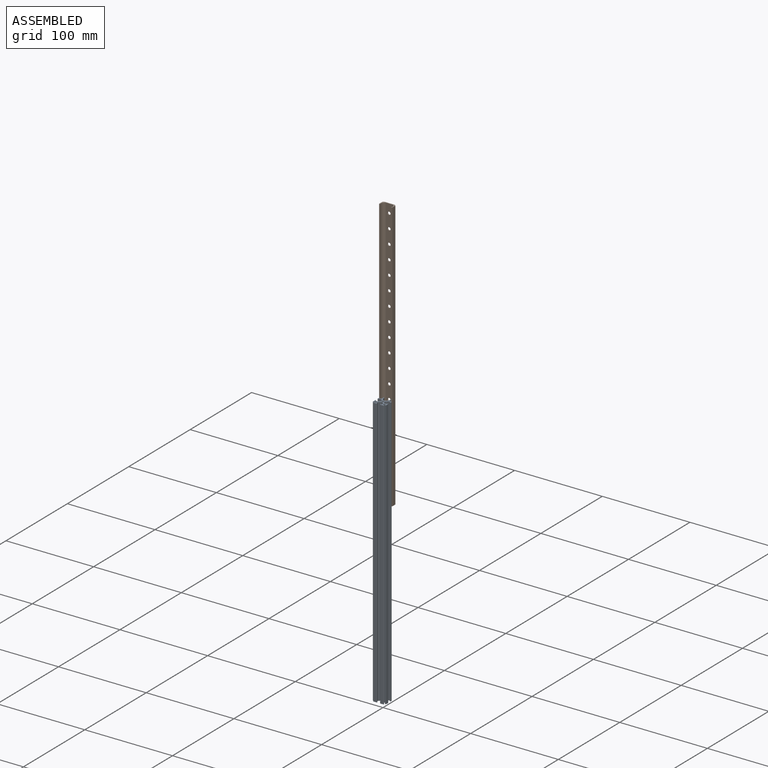
[diagram: assembled view]
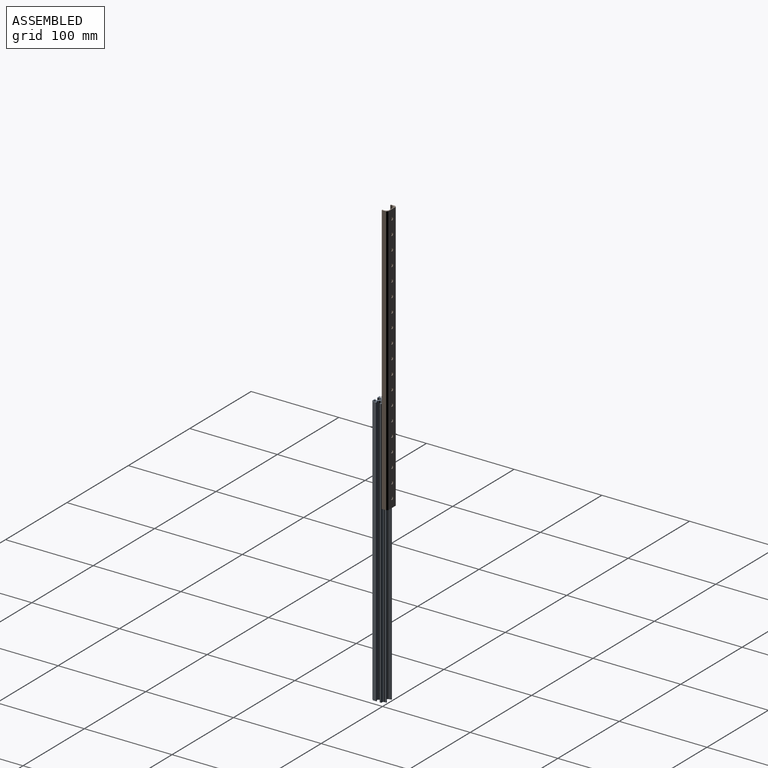
[diagram: assembled view, second angle]
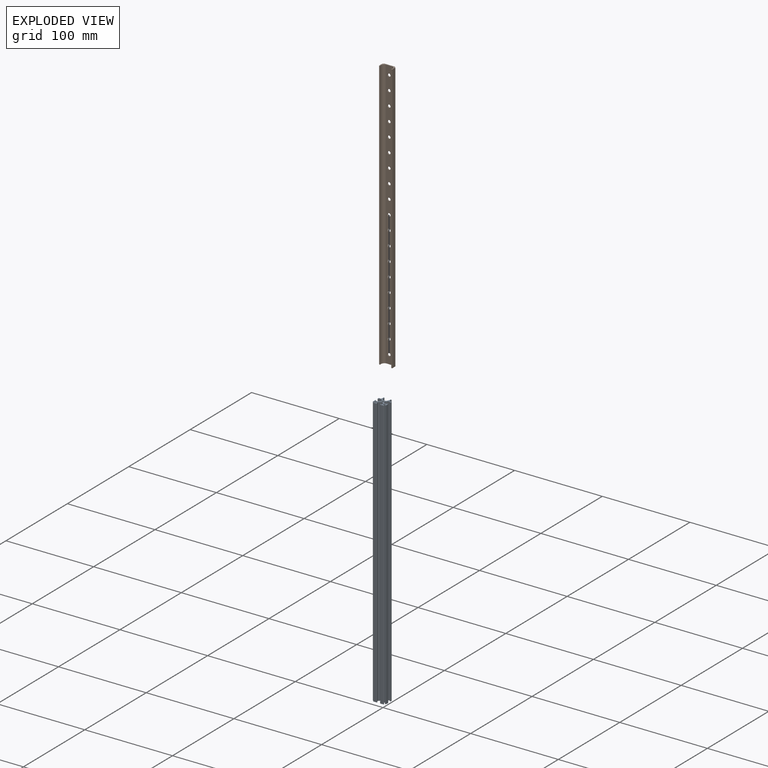
[diagram: exploded view]
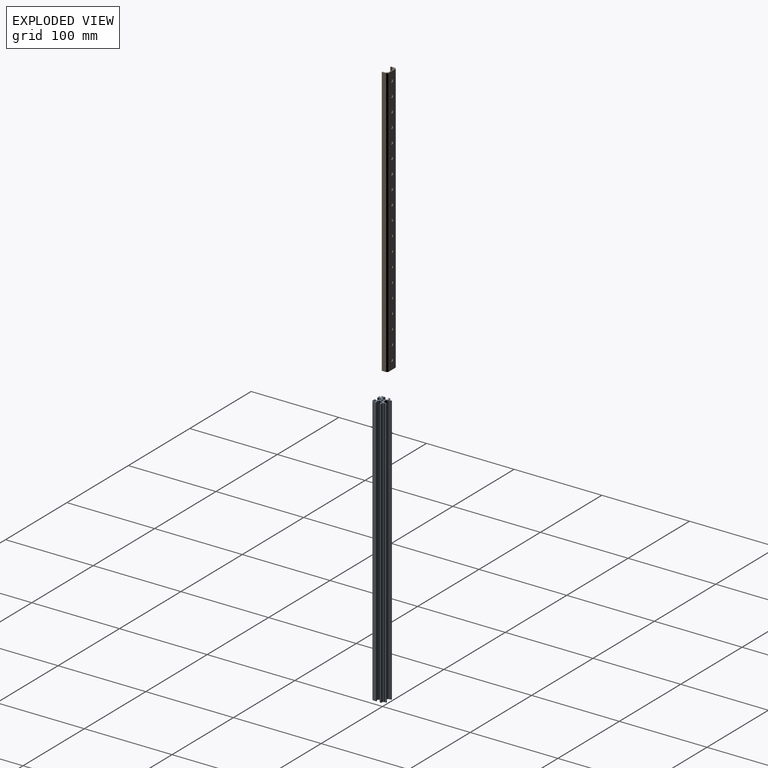
[diagram: exploded view, second angle]
ASSEMBLY  parts=2 mates=3
PART A: 121 faces, bbox 15x15.1x308 mm
  f0: cylinder r=1.6mm len=6mm, axis (1,0,0), area 37mm2, adj f7,f8,f9,f10,f11,f12,f13,f14
  f1: cylinder r=1.6mm len=6mm, axis (1,0,0), area 37.1mm2, adj f6,f8,f9,f10,f12,f15,f17,f18
  f2: cylinder r=1.22mm len=308mm, axis (0,0,-1), area 648.3mm2, adj f24,f25,f105,f106
  f3: cylinder r=1.25mm len=308mm, axis (0,0,1), area 2102.2mm2, adj f24,f25,f77,f78
  f4: cylinder r=0.5mm len=308mm, axis (0,0,1), area 362.9mm2, adj f24,f25,f52,f53
  f5: cylinder r=1.25mm len=308mm, axis (0,0,1), area 2102.2mm2, adj f24,f25,f51,f52
  f6: cylinder r=1.25mm len=7mm, axis (0,0,1), area 52.5mm2, adj f1,f24
  f7: cylinder r=1.25mm len=6.4mm, axis (0,0,1), area 50.3mm2, adj f0,f25
  f8: cylinder r=1.25mm len=290mm, axis (0,0,1), area 2272.7mm2, adj f0,f1
  f9: plane 289.03x1.2mm, normal (1,0,0), area 346.7mm2, adj f0,f1,f10,f15
  f10: cylinder r=1mm len=292mm, axis (0,0,1), area 456.3mm2, adj f0,f1,f9,f40
  f11: cylinder r=1mm len=8mm, axis (0,0,1), area 11.4mm2, adj f0,f20,f25,f40
  f12: cylinder r=1mm len=292mm, axis (0,0,1), area 456.3mm2, adj f0,f1,f18,f92
  f13: cylinder r=1mm len=8mm, axis (0,0,1), area 11.4mm2, adj f0,f25,f90,f92
  f14: cylinder r=1mm len=8mm, axis (0,0,1), area 11.4mm2, adj f0,f20,f25,f37
  f15: cylinder r=1mm len=292mm, axis (0,0,1), area 456.3mm2, adj f0,f1,f9,f37
  f16: cylinder r=1mm len=8mm, axis (0,0,1), area 11.4mm2, adj f0,f25,f89,f90
  f17: cylinder r=1mm len=292mm, axis (0,0,1), area 456.3mm2, adj f0,f1,f18,f89
  f18: plane 289.03x1.2mm, normal (-1,0,0), area 346.7mm2, adj f0,f1,f12,f17
  f19: cylinder r=1mm len=8mm, axis (0,0,1), area 11.4mm2, adj f1,f24,f37,f38
  f20: plane 6.52x1.2mm, normal (1,0,0), area 7.7mm2, adj f0,f11,f14,f25
  f21: cylinder r=1mm len=8mm, axis (0,0,1), area 11.4mm2, adj f1,f22,f24,f89
  f22: plane 6.52x1.2mm, normal (-1,0,0), area 7.7mm2, adj f1,f21,f24,f91
  f23: plane 308x1.36mm, normal (0.98,0.17,0), area 425.2mm2, adj f24,f25,f113,f120
  f24: plane 15.1x15mm, normal (0,0,-1), area 79.4mm2, adj f2,f3,f4,f5,f6,f19,f21,f22
  f25: plane 15.1x15mm, normal (0,0,1), area 79.4mm2, adj f2,f3,f4,f5,f7,f11,f13,f14
  f26: plane 308x0.54mm, normal (0,1,0), area 166.4mm2, adj f24,f25,f114,f115
  f27: plane 308x2.13mm, normal (0,1,0), area 654.5mm2, adj f24,f25,f111,f117
  f28: plane 308x1.1mm, normal (1,0,0), area 338.8mm2, adj f24,f25,f29,f111
  f29: cylinder r=0.5mm len=308mm, axis (0,0,1), area 241.9mm2, adj f24,f25,f28,f30
  f30: plane 308x0.2mm, normal (0,-1,0), area 61.6mm2, adj f24,f25,f29,f31
  f31: cylinder r=0.5mm len=308mm, axis (0,0,1), area 241.9mm2, adj f24,f25,f30,f32
  f32: plane 308x0.4mm, normal (-1,0,0), area 123.2mm2, adj f24,f25,f31,f33
  f33: cylinder r=0.2mm len=308mm, axis (0,0,1), area 96.8mm2, adj f24,f25,f32,f34
  f34: plane 308x2.1mm, normal (0,-1,0), area 646.8mm2, adj f24,f25,f33,f35
  f35: cylinder r=0.5mm len=308mm, axis (0,0,1), area 241.9mm2, adj f24,f25,f34,f36
  f36: plane 308x0.25mm, normal (1,0,0), area 77mm2, adj f24,f25,f35,f37
  f37: cylinder r=0.5mm len=308mm, axis (0,0,1), area 241.9mm2, adj f14,f15,f19,f24,f25,f36
  f38: plane 6.52x1.2mm, normal (1,0,0), area 7.7mm2, adj f1,f19,f24,f39
  f39: cylinder r=1mm len=8mm, axis (0,0,1), area 11.4mm2, adj f1,f24,f38,f40
  f40: cylinder r=0.5mm len=308mm, axis (0,0,1), area 241.9mm2, adj f10,f11,f24,f25,f39,f41
  f41: plane 308x0.25mm, normal (1,0,0), area 77mm2, adj f24,f25,f40,f42
  f42: cylinder r=0.5mm len=308mm, axis (0,0,1), area 241.9mm2, adj f24,f25,f41,f43
  f43: plane 308x2.1mm, normal (0,1,0), area 646.8mm2, adj f24,f25,f42,f44
  f44: cylinder r=0.2mm len=308mm, axis (0,0,1), area 96.8mm2, adj f24,f25,f43,f45
  f45: plane 308x0.4mm, normal (-1,0,0), area 123.2mm2, adj f24,f25,f44,f46
  f46: cylinder r=0.5mm len=308mm, axis (0,0,1), area 241.9mm2, adj f24,f25,f45,f47
  f47: plane 308x0.2mm, normal (0,1,0), area 61.6mm2, adj f24,f25,f46,f48
  f48: cylinder r=0.5mm len=308mm, axis (0,0,1), area 241.9mm2, adj f24,f25,f47,f49
  f49: plane 308x3.34mm, normal (1,0,0), area 1027.4mm2, adj f24,f25,f48,f50
  f50: cylinder r=0.5mm len=308mm, axis (0,0,1), area 362.9mm2, adj f24,f25,f49,f51
  f51: plane 308x0.48mm, normal (-0.71,-0.71,0), area 210.3mm2, adj f5,f24,f25,f50
  f52: plane 308x0.48mm, normal (0.71,0.71,0), area 210.3mm2, adj f4,f5,f24,f25
  f53: plane 308x3.34mm, normal (0,-1,0), area 1027.4mm2, adj f4,f24,f25,f54
  f54: cylinder r=0.5mm len=308mm, axis (0,0,1), area 241.9mm2, adj f24,f25,f53,f55
  f55: plane 308x0.2mm, normal (-1,0,0), area 61.6mm2, adj f24,f25,f54,f56
  f56: cylinder r=0.5mm len=308mm, axis (0,0,1), area 241.9mm2, adj f24,f25,f55,f57
  f57: plane 308x0.4mm, normal (0,1,0), area 123.2mm2, adj f24,f25,f56,f58
  f58: cylinder r=0.2mm len=308mm, axis (0,0,1), area 96.8mm2, adj f24,f25,f57,f59
  f59: plane 308x2.1mm, normal (-1,0,0), area 646.8mm2, adj f24,f25,f58,f60
  f60: cylinder r=0.5mm len=308mm, axis (0,0,1), area 241.9mm2, adj f24,f25,f59,f61
  f61: plane 308x0.25mm, normal (0,-1,0), area 77mm2, adj f24,f25,f60,f62
  f62: cylinder r=0.5mm len=308mm, axis (0,0,1), area 241.9mm2, adj f24,f25,f61,f63
  f63: cylinder r=1mm len=308mm, axis (0,0,1), area 483.8mm2, adj f24,f25,f62,f64
  f64: plane 308x1.2mm, normal (0,-1,0), area 369.6mm2, adj f24,f25,f63,f65
  f65: cylinder r=1mm len=308mm, axis (0,0,1), area 483.8mm2, adj f24,f25,f64,f66
  f66: cylinder r=0.5mm len=308mm, axis (0,0,1), area 241.9mm2, adj f24,f25,f65,f67
  f67: plane 308x0.25mm, normal (0,-1,0), area 77mm2, adj f24,f25,f66,f68
  f68: cylinder r=0.5mm len=308mm, axis (0,0,1), area 241.9mm2, adj f24,f25,f67,f69
  f69: plane 308x2.1mm, normal (1,0,0), area 646.8mm2, adj f24,f25,f68,f70
  f70: cylinder r=0.2mm len=308mm, axis (0,0,1), area 96.8mm2, adj f24,f25,f69,f71
  f71: plane 308x0.4mm, normal (0,1,0), area 123.2mm2, adj f24,f25,f70,f72
  f72: cylinder r=0.5mm len=308mm, axis (0,0,1), area 241.9mm2, adj f24,f25,f71,f73
  f73: plane 308x0.2mm, normal (1,0,0), area 61.6mm2, adj f24,f25,f72,f74
  f74: cylinder r=0.5mm len=308mm, axis (0,0,1), area 241.9mm2, adj f24,f25,f73,f75
  f75: plane 308x3.34mm, normal (0,-1,0), area 1027.4mm2, adj f24,f25,f74,f76
  f76: cylinder r=0.5mm len=308mm, axis (0,0,1), area 362.9mm2, adj f24,f25,f75,f77
  f77: plane 308x0.48mm, normal (-0.71,0.71,0), area 210.3mm2, adj f3,f24,f25,f76
  f78: plane 308x0.48mm, normal (0.71,-0.71,0), area 210.3mm2, adj f3,f24,f25,f79
  f79: cylinder r=0.5mm len=308mm, axis (0,0,1), area 362.9mm2, adj f24,f25,f78,f80
  f80: plane 308x3.34mm, normal (-1,0,0), area 1027.4mm2, adj f24,f25,f79,f81
  f81: cylinder r=0.5mm len=308mm, axis (0,0,1), area 241.9mm2, adj f24,f25,f80,f82
  f82: plane 308x0.2mm, normal (0,1,0), area 61.6mm2, adj f24,f25,f81,f83
  f83: cylinder r=0.5mm len=308mm, axis (0,0,1), area 241.9mm2, adj f24,f25,f82,f84
  f84: plane 308x0.4mm, normal (1,0,0), area 123.2mm2, adj f24,f25,f83,f85
  f85: cylinder r=0.2mm len=308mm, axis (0,0,1), area 96.8mm2, adj f24,f25,f84,f86
  f86: plane 308x2.1mm, normal (0,1,0), area 646.8mm2, adj f24,f25,f85,f87
  f87: cylinder r=0.5mm len=308mm, axis (0,0,1), area 241.9mm2, adj f24,f25,f86,f88
  f88: plane 308x0.25mm, normal (-1,0,0), area 77mm2, adj f24,f25,f87,f89
  f89: cylinder r=0.5mm len=308mm, axis (0,0,1), area 241.9mm2, adj f16,f17,f21,f24,f25,f88
  f90: plane 6.52x1.2mm, normal (-1,0,0), area 7.7mm2, adj f0,f13,f16,f25
  f91: cylinder r=1mm len=8mm, axis (0,0,1), area 11.4mm2, adj f1,f22,f24,f92
  f92: cylinder r=0.5mm len=308mm, axis (0,0,1), area 241.9mm2, adj f12,f13,f24,f25,f91,f93
  f93: plane 308x0.25mm, normal (-1,0,0), area 77mm2, adj f24,f25,f92,f94
  f94: cylinder r=0.5mm len=308mm, axis (0,0,1), area 241.9mm2, adj f24,f25,f93,f95
  f95: plane 308x2.1mm, normal (0,-1,0), area 646.8mm2, adj f24,f25,f94,f96
  f96: cylinder r=0.2mm len=308mm, axis (0,0,1), area 96.8mm2, adj f24,f25,f95,f97
  f97: plane 308x0.4mm, normal (1,0,0), area 123.2mm2, adj f24,f25,f96,f98
  f98: cylinder r=0.5mm len=308mm, axis (0,0,1), area 241.9mm2, adj f24,f25,f97,f99
  f99: plane 308x0.2mm, normal (0,-1,0), area 61.6mm2, adj f24,f25,f98,f100
  f100: cylinder r=0.5mm len=308mm, axis (0,0,1), area 241.9mm2, adj f24,f25,f99,f101
  f101: plane 308x1.1mm, normal (-1,0,0), area 338.8mm2, adj f24,f25,f100,f110
  f102: plane 308x2.13mm, normal (0,1,0), area 654.5mm2, adj f24,f25,f110,f116
  f103: cylinder r=1.22mm len=308mm, axis (0,0,-1), area 648.3mm2, adj f24,f25,f104,f108
  f104: plane 308x1.12mm, normal (-1,0,0), area 345.7mm2, adj f24,f25,f103,f116
  f105: plane 308x1.12mm, normal (1,0,0), area 345.7mm2, adj f2,f24,f25,f117
  f106: plane 308x0.32mm, normal (1,0,0), area 99.3mm2, adj f2,f24,f25,f115
  f107: plane 308x0.54mm, normal (0,1,0), area 166.4mm2, adj f24,f25,f112,f113
  f108: plane 308x0.32mm, normal (-1,0,0), area 99.3mm2, adj f24,f25,f103,f112
  f109: plane 308x1.36mm, normal (-0.98,0.17,0), area 425.2mm2, adj f24,f25,f114,f119
  f110: cylinder r=0.5mm len=308mm, axis (0,0,1), area 241.9mm2, adj f24,f25,f101,f102
  f111: cylinder r=0.5mm len=308mm, axis (0,0,1), area 241.9mm2, adj f24,f25,f27,f28
  f112: cylinder r=0.25mm len=308mm, axis (0,0,-1), area 121mm2, adj f24,f25,f107,f108
  f113: cylinder r=0.25mm len=308mm, axis (0,0,1), area 107.5mm2, adj f23,f24,f25,f107
  f114: cylinder r=0.25mm len=308mm, axis (0,0,1), area 107.5mm2, adj f24,f25,f26,f109
  f115: cylinder r=0.25mm len=308mm, axis (0,0,-1), area 121mm2, adj f24,f25,f26,f106
  f116: cylinder r=0.2mm len=308mm, axis (0,0,-1), area 96.8mm2, adj f24,f25,f102,f104
  f117: cylinder r=0.2mm len=308mm, axis (0,0,-1), area 96.8mm2, adj f24,f25,f27,f105
  f118: cylinder r=2.86mm len=308mm, axis (0,0,-1), area 1703.2mm2, adj f24,f25,f119,f120
  f119: cylinder r=6.46mm len=308mm, axis (0,0,-1), area 854.8mm2, adj f24,f25,f109,f118
  f120: cylinder r=6.46mm len=308mm, axis (0,0,-1), area 854.8mm2, adj f23,f24,f25,f118
PART B: 45 faces, bbox 15x6.6x308 mm
  f0: cylinder r=1.7mm len=3.4mm, axis (0,-1,0), area 10.7mm2, adj f31,f32
  f1: cylinder r=1.7mm len=3.4mm, axis (0,-1,0), area 10.7mm2, adj f31,f32
  f2: cylinder r=1.22mm len=308mm, axis (0,0,-1), area 648.3mm2, adj f20,f28,f29,f30
  f3: cylinder r=1.7mm len=3.4mm, axis (0,-1,0), area 10.7mm2, adj f31,f32
  f4: cylinder r=1.7mm len=3.4mm, axis (0,-1,0), area 10.7mm2, adj f31,f32
  f5: cylinder r=1.7mm len=3.4mm, axis (0,-1,0), area 10.7mm2, adj f31,f32
  f6: cylinder r=1.7mm len=3.4mm, axis (0,-1,0), area 10.7mm2, adj f31,f32
  f7: cylinder r=1.7mm len=3.4mm, axis (0,-1,0), area 10.7mm2, adj f31,f32
  f8: cylinder r=1.7mm len=3.4mm, axis (0,-1,0), area 10.7mm2, adj f31,f32
  f9: cylinder r=1.7mm len=3.4mm, axis (0,-1,0), area 10.7mm2, adj f31,f32
  f10: cylinder r=1.7mm len=3.4mm, axis (0,-1,0), area 10.7mm2, adj f31,f32
  f11: cylinder r=1.7mm len=3.4mm, axis (0,-1,0), area 10.7mm2, adj f31,f32
  f12: cylinder r=1.7mm len=3.4mm, axis (0,-1,0), area 10.7mm2, adj f31,f32
  f13: cylinder r=1.7mm len=3.4mm, axis (0,-1,0), area 10.7mm2, adj f31,f32
  f14: cylinder r=1.7mm len=3.4mm, axis (0,-1,0), area 10.7mm2, adj f31,f32
  f15: cylinder r=1.7mm len=3.4mm, axis (0,-1,0), area 10.7mm2, adj f31,f32
  f16: cylinder r=1.7mm len=3.4mm, axis (0,-1,0), area 10.7mm2, adj f31,f32
  f17: cylinder r=1.7mm len=3.4mm, axis (0,-1,0), area 10.7mm2, adj f31,f32
  f18: cylinder r=1.7mm len=3.4mm, axis (0,-1,0), area 10.7mm2, adj f31,f32
  f19: cylinder r=1.7mm len=3.4mm, axis (0,-1,0), area 10.7mm2, adj f31,f32
  f20: plane 308x0.29mm, normal (1,0,0), area 88.9mm2, adj f2,f29,f30,f41
  f21: plane 308x0.29mm, normal (-1,0,0), area 88.9mm2, adj f22,f29,f30,f44
  f22: cylinder r=1.22mm len=308mm, axis (0,0,-1), area 648.3mm2, adj f21,f23,f29,f30
  f23: plane 308x0.57mm, normal (-1,0,0), area 176.3mm2, adj f22,f29,f30,f38
  f24: plane 308x0.73mm, normal (0,-1,0), area 223.3mm2, adj f29,f30,f37,f38
  f25: plane 308x4.85mm, normal (1,0,0), area 1493.8mm2, adj f29,f30,f33,f37
  f26: plane 308x4.85mm, normal (-1,0,0), area 1493.8mm2, adj f29,f30,f34,f39
  f27: plane 308x0.73mm, normal (0,-1,0), area 223.3mm2, adj f29,f30,f39,f40
  f28: plane 308x0.57mm, normal (1,0,0), area 176.3mm2, adj f2,f29,f30,f40
  f29: plane 15x6.6mm, normal (0,0,1), area 30mm2, adj f2,f20,f21,f22,f23,f24,f25,f26
  f30: plane 15x6.6mm, normal (0,0,-1), area 30mm2, adj f2,f20,f21,f22,f23,f24,f25,f26
  f31: plane 308x12mm, normal (0,1,0), area 3523.5mm2, adj f0,f1,f3,f4,f5,f6,f7,f8
  f32: plane 308x7.61mm, normal (0,-1,0), area 2171.2mm2, adj f0,f1,f3,f4,f5,f6,f7,f8
  f33: plane 308x1.5mm, normal (0.71,0.71,0), area 653.4mm2, adj f25,f29,f30,f31
  f34: plane 308x1.5mm, normal (-0.71,0.71,0), area 653.4mm2, adj f26,f29,f30,f31
  f35: plane 308x1.63mm, normal (-0.74,-0.67,0), area 677mm2, adj f29,f30,f43,f44
  f36: plane 308x1.63mm, normal (0.74,-0.67,0), area 677mm2, adj f29,f30,f41,f42
  f37: cylinder r=0.25mm len=308mm, axis (0,0,-1), area 121mm2, adj f24,f25,f29,f30
  f38: cylinder r=0.25mm len=308mm, axis (0,0,-1), area 121mm2, adj f23,f24,f29,f30
  f39: cylinder r=0.25mm len=308mm, axis (0,0,-1), area 121mm2, adj f26,f27,f29,f30
  f40: cylinder r=0.25mm len=308mm, axis (0,0,-1), area 121mm2, adj f27,f28,f29,f30
  f41: cylinder r=1mm len=308mm, axis (0,0,1), area 225.7mm2, adj f20,f29,f30,f36
  f42: cylinder r=1mm len=308mm, axis (0,0,-1), area 258.1mm2, adj f29,f30,f32,f36
  f43: cylinder r=1mm len=308mm, axis (0,0,-1), area 258.1mm2, adj f29,f30,f32,f35
  f44: cylinder r=1mm len=308mm, axis (0,0,1), area 225.7mm2, adj f21,f29,f30,f35
PLACE A t=(0,0,83)mm
PLACE B t=(0,0,283)mm
MATE slider A.f2 <-> B.f22  axis (0,0,-1) through (5.48,6.1,308)mm
MATE parallel B.f10 <-> A.f102  axis (0,1,0) through (0,10.95,354)mm
MATE slider B.f2 <-> A.f103  axis (0,0,-1) through (-5.48,6.1,508)mm
